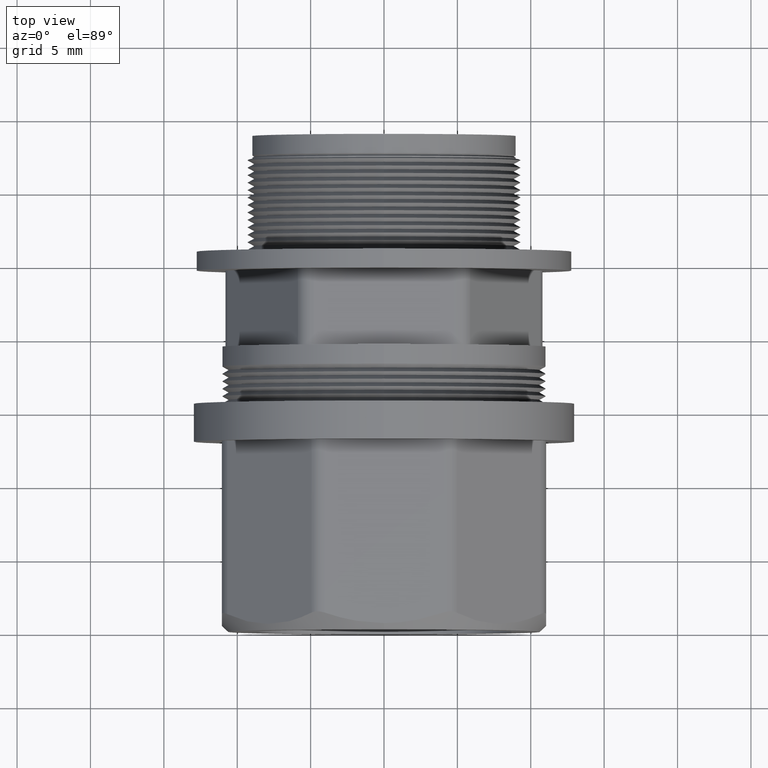
[diagram: clean part render]
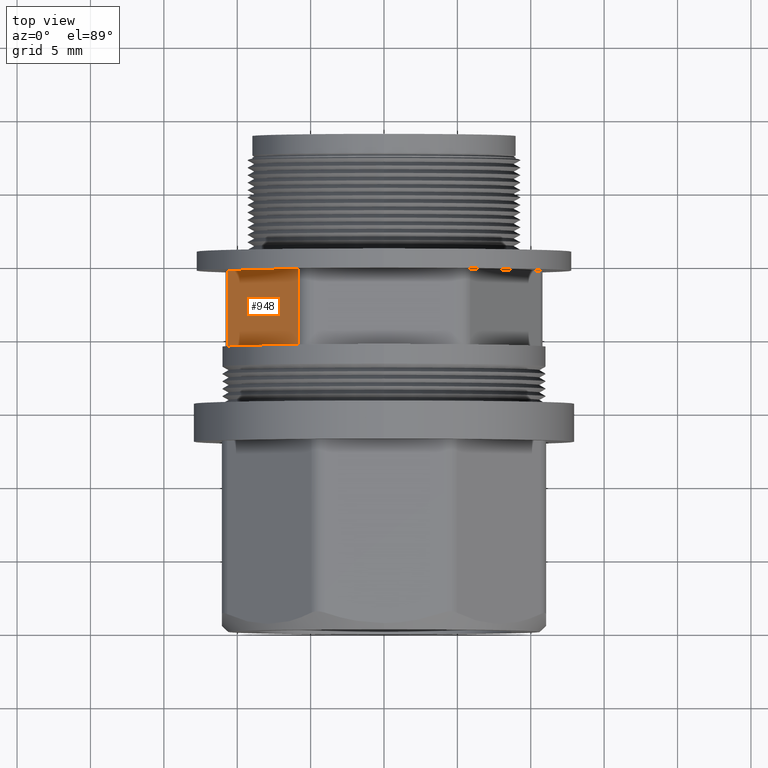
[diagram: same view with one face highlighted and labeled with its STEP entity id]
A machine part, top view. The second image highlights one B-rep face of the part: STEP entity #948.
In plain terms, the highlighted planar face has unit normal (-0.866, 0, 0.5).
Its self-contained STEP definition (entity closure, byte-faithful):
#940 = ORIENTED_EDGE ( 'NONE', *, *, #1038, .T. ) ;
#941 = EDGE_CURVE ( 'NONE', #1052, #1046, #2715, .T. ) ;
#942 = ORIENTED_EDGE ( 'NONE', *, *, #1294, .T. ) ;
#945 = ORIENTED_EDGE ( 'NONE', *, *, #1045, .F. ) ;
#948 = ADVANCED_FACE ( 'NONE', ( #2703 ), #2702, .T. ) ;
#949 = EDGE_LOOP ( 'NONE', ( #945, #942, #940, #1017 ) ) ;
#1017 = ORIENTED_EDGE ( 'NONE', *, *, #941, .T. ) ;
#1038 = EDGE_CURVE ( 'NONE', #1173, #1052, #3188, .T. ) ;
#1043 = VERTEX_POINT ( 'NONE', #3181 ) ;
#1045 = EDGE_CURVE ( 'NONE', #1043, #1046, #3192, .T. ) ;
#1046 = VERTEX_POINT ( 'NONE', #3083 ) ;
#1052 = VERTEX_POINT ( 'NONE', #3176 ) ;
#1173 = VERTEX_POINT ( 'NONE', #3365 ) ;
#1294 = EDGE_CURVE ( 'NONE', #1043, #1173, #3434, .T. ) ;
#2698 = DIRECTION ( 'NONE',  ( 0.4999999999999998900, 0.0000000000000000000, 0.8660254037844386000 ) ) ;
#2699 = DIRECTION ( 'NONE',  ( -0.8660254037844387100, 0.0000000000000000000, 0.4999999999999999400 ) ) ;
#2700 = CARTESIAN_POINT ( 'NONE',  ( -0.2165063509461096800, 0.9690000000000000800, 0.3750000000000002200 ) ) ;
#2701 = AXIS2_PLACEMENT_3D ( 'NONE', #2700, #2699, #2698 ) ;
#2702 = PLANE ( 'NONE',  #2701 ) ;
#2703 = FACE_OUTER_BOUND ( 'NONE', #949, .T. ) ;
#2712 = DIRECTION ( 'NONE',  ( 0.0000000000000000000, -1.000000000000000000, 0.0000000000000000000 ) ) ;
#2713 = VECTOR ( 'NONE', #2712, 39.37007874015748100 ) ;
#2714 = CARTESIAN_POINT ( 'NONE',  ( -0.4185789451624788400, 0.9690000000000000800, 0.02500000000000000500 ) ) ;
#2715 = LINE ( 'NONE', #2714, #2713 ) ;
#3083 = CARTESIAN_POINT ( 'NONE',  ( -0.4185789451624787300, 0.7650000000000000100, 0.02500000000000014400 ) ) ;
#3166 = DIRECTION ( 'NONE',  ( -0.5000000000000000000, 0.0000000000000000000, -0.8660254037844386000 ) ) ;
#3174 = VECTOR ( 'NONE', #3166, 39.37007874015748900 ) ;
#3176 = CARTESIAN_POINT ( 'NONE',  ( -0.4185789451624787300, 0.9690000000000000800, 0.02500000000000014400 ) ) ;
#3181 = CARTESIAN_POINT ( 'NONE',  ( -0.2309401076758503500, 0.7650000000000000100, 0.3500000000000002600 ) ) ;
#3188 = LINE ( 'NONE', #3212, #3174 ) ;
#3189 = DIRECTION ( 'NONE',  ( -0.5000000000000000000, 0.0000000000000000000, -0.8660254037844386000 ) ) ;
#3190 = VECTOR ( 'NONE', #3189, 39.37007874015748900 ) ;
#3191 = CARTESIAN_POINT ( 'NONE',  ( -0.2165063509461096800, 0.7650000000000000100, 0.3750000000000002200 ) ) ;
#3192 = LINE ( 'NONE', #3191, #3190 ) ;
#3212 = CARTESIAN_POINT ( 'NONE',  ( -0.2165063509461096800, 0.9690000000000000800, 0.3750000000000002200 ) ) ;
#3365 = CARTESIAN_POINT ( 'NONE',  ( -0.2309401076758503500, 0.9690000000000000800, 0.3500000000000002600 ) ) ;
#3432 = VECTOR ( 'NONE', #3444, 39.37007874015748100 ) ;
#3433 = CARTESIAN_POINT ( 'NONE',  ( -0.2309401076758503500, 0.9690000000000000800, 0.3500000000000002600 ) ) ;
#3434 = LINE ( 'NONE', #3433, #3432 ) ;
#3444 = DIRECTION ( 'NONE',  ( -0.0000000000000000000, 1.000000000000000000, -0.0000000000000000000 ) ) ;